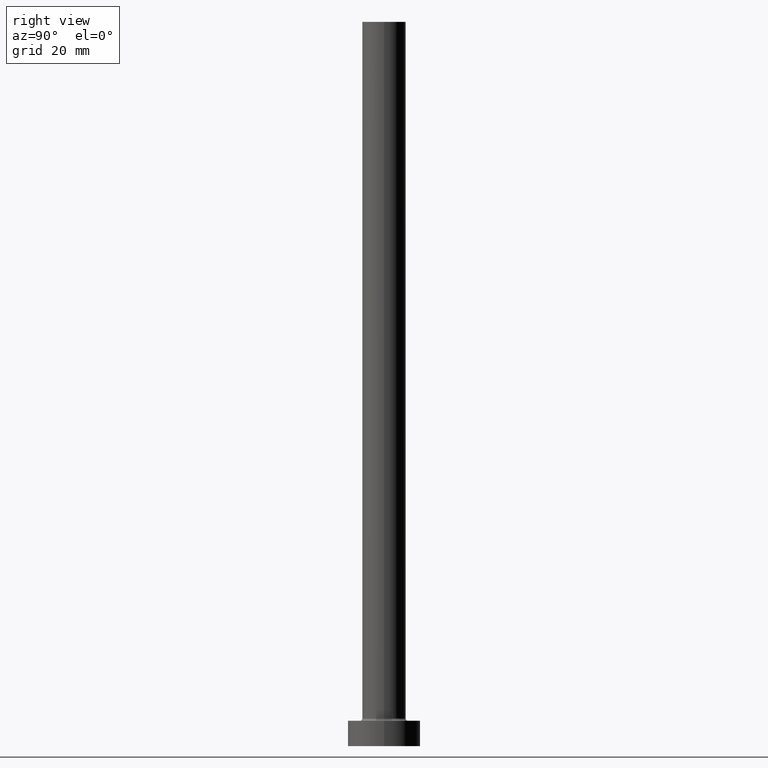
[diagram: clean part render]
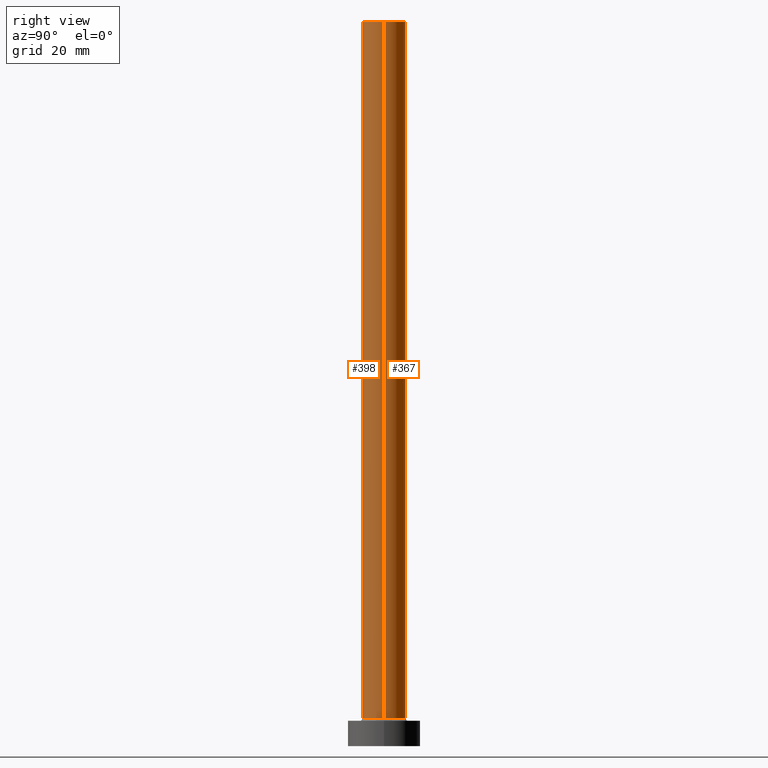
[diagram: same view with one multi-face feature highlighted, each face labeled with its STEP entity id]
A machine part, right view. The highlighted faces form ONE feature: a constant-radius fillet chain: 2 tangent blend faces with common blend radius 6 mm. The faces share edges in the B-rep.
Their STEP definitions:
[1] entity #398 (Cylinder):
#1 = DIRECTION ( 'NONE',  ( -0.000000000000000000, -0.000000000000000000, -1.000000000000000000 ) ) ;
#10 = EDGE_LOOP ( 'NONE', ( #16, #228, #18, #420 ) ) ;
#16 = ORIENTED_EDGE ( 'NONE', *, *, #302, .F. ) ;
#18 = ORIENTED_EDGE ( 'NONE', *, *, #45, .T. ) ;
#36 = DIRECTION ( 'NONE',  ( -1.000000000000000000, 0.000000000000000000, 0.000000000000000000 ) ) ;
#45 = EDGE_CURVE ( 'NONE', #375, #48, #86, .T. ) ;
#48 = VERTEX_POINT ( 'NONE', #191 ) ;
#56 = AXIS2_PLACEMENT_3D ( 'NONE', #425, #95, #204 ) ;
#86 = LINE ( 'NONE', #344, #371 ) ;
#95 = DIRECTION ( 'NONE',  ( 0.000000000000000000, 0.000000000000000000, 1.000000000000000000 ) ) ;
#109 = CARTESIAN_POINT ( 'NONE',  ( 6.000000000000000888, 7.347880794884120722E-16, 200.0000000000000000 ) ) ;
#115 = EDGE_CURVE ( 'NONE', #48, #320, #452, .T. ) ;
#130 = DIRECTION ( 'NONE',  ( -0.000000000000000000, -0.000000000000000000, -1.000000000000000000 ) ) ;
#141 = EDGE_CURVE ( 'NONE', #375, #341, #145, .T. ) ;
#143 = CARTESIAN_POINT ( 'NONE',  ( 6.000000000000000888, 7.347880794884120722E-16, 7.700000000000012612 ) ) ;
#145 = CIRCLE ( 'NONE', #56, 6.000000000000000888 ) ;
#146 = AXIS2_PLACEMENT_3D ( 'NONE', #421, #319, #428 ) ;
#178 = CARTESIAN_POINT ( 'NONE',  ( 6.000000000000000888, 7.347880794884120722E-16, 200.0000000000000000 ) ) ;
#181 = LINE ( 'NONE', #178, #345 ) ;
#183 = CYLINDRICAL_SURFACE ( 'NONE', #426, 6.000000000000000888 ) ;
#191 = CARTESIAN_POINT ( 'NONE',  ( -6.000000000000000888, 0.000000000000000000, 7.700000000000012612 ) ) ;
#204 = DIRECTION ( 'NONE',  ( 1.000000000000000000, 0.000000000000000000, 0.000000000000000000 ) ) ;
#222 = CARTESIAN_POINT ( 'NONE',  ( -6.000000000000000888, 0.000000000000000000, 200.0000000000000000 ) ) ;
#228 = ORIENTED_EDGE ( 'NONE', *, *, #141, .F. ) ;
#296 = CARTESIAN_POINT ( 'NONE',  ( 0.000000000000000000, 0.000000000000000000, 200.0000000000000000 ) ) ;
#302 = EDGE_CURVE ( 'NONE', #341, #320, #181, .T. ) ;
#319 = DIRECTION ( 'NONE',  ( 0.000000000000000000, 0.000000000000000000, 1.000000000000000000 ) ) ;
#320 = VERTEX_POINT ( 'NONE', #143 ) ;
#341 = VERTEX_POINT ( 'NONE', #109 ) ;
#344 = CARTESIAN_POINT ( 'NONE',  ( -6.000000000000000888, 0.000000000000000000, 200.0000000000000000 ) ) ;
#345 = VECTOR ( 'NONE', #1, 1000.000000000000000 ) ;
#356 = FACE_OUTER_BOUND ( 'NONE', #10, .T. ) ;
#371 = VECTOR ( 'NONE', #130, 1000.000000000000000 ) ;
#375 = VERTEX_POINT ( 'NONE', #222 ) ;
#392 = DIRECTION ( 'NONE',  ( -0.000000000000000000, -0.000000000000000000, -1.000000000000000000 ) ) ;
#398 = ADVANCED_FACE ( 'NONE', ( #356 ), #183, .T. ) ;
#420 = ORIENTED_EDGE ( 'NONE', *, *, #115, .T. ) ;
#421 = CARTESIAN_POINT ( 'NONE',  ( 0.000000000000000000, 0.000000000000000000, 7.700000000000012612 ) ) ;
#425 = CARTESIAN_POINT ( 'NONE',  ( 0.000000000000000000, 0.000000000000000000, 200.0000000000000000 ) ) ;
#426 = AXIS2_PLACEMENT_3D ( 'NONE', #296, #392, #36 ) ;
#428 = DIRECTION ( 'NONE',  ( 1.000000000000000000, 0.000000000000000000, 0.000000000000000000 ) ) ;
#452 = CIRCLE ( 'NONE', #146, 6.000000000000000888 ) ;
[2] entity #367 (Cylinder):
#1 = DIRECTION ( 'NONE',  ( -0.000000000000000000, -0.000000000000000000, -1.000000000000000000 ) ) ;
#24 = CARTESIAN_POINT ( 'NONE',  ( 0.000000000000000000, 0.000000000000000000, 200.0000000000000000 ) ) ;
#27 = CARTESIAN_POINT ( 'NONE',  ( 0.000000000000000000, 0.000000000000000000, 7.700000000000012612 ) ) ;
#40 = ORIENTED_EDGE ( 'NONE', *, *, #45, .F. ) ;
#45 = EDGE_CURVE ( 'NONE', #375, #48, #86, .T. ) ;
#48 = VERTEX_POINT ( 'NONE', #191 ) ;
#50 = AXIS2_PLACEMENT_3D ( 'NONE', #27, #278, #279 ) ;
#86 = LINE ( 'NONE', #344, #371 ) ;
#93 = EDGE_CURVE ( 'NONE', #341, #375, #353, .T. ) ;
#101 = AXIS2_PLACEMENT_3D ( 'NONE', #217, #250, #142 ) ;
#104 = ORIENTED_EDGE ( 'NONE', *, *, #271, .T. ) ;
#109 = CARTESIAN_POINT ( 'NONE',  ( 6.000000000000000888, 7.347880794884120722E-16, 200.0000000000000000 ) ) ;
#130 = DIRECTION ( 'NONE',  ( -0.000000000000000000, -0.000000000000000000, -1.000000000000000000 ) ) ;
#142 = DIRECTION ( 'NONE',  ( -1.000000000000000000, 0.000000000000000000, 0.000000000000000000 ) ) ;
#143 = CARTESIAN_POINT ( 'NONE',  ( 6.000000000000000888, 7.347880794884120722E-16, 7.700000000000012612 ) ) ;
#156 = ORIENTED_EDGE ( 'NONE', *, *, #93, .F. ) ;
#158 = AXIS2_PLACEMENT_3D ( 'NONE', #24, #167, #273 ) ;
#165 = CIRCLE ( 'NONE', #50, 6.000000000000000888 ) ;
#167 = DIRECTION ( 'NONE',  ( 0.000000000000000000, 0.000000000000000000, 1.000000000000000000 ) ) ;
#178 = CARTESIAN_POINT ( 'NONE',  ( 6.000000000000000888, 7.347880794884120722E-16, 200.0000000000000000 ) ) ;
#181 = LINE ( 'NONE', #178, #345 ) ;
#191 = CARTESIAN_POINT ( 'NONE',  ( -6.000000000000000888, 0.000000000000000000, 7.700000000000012612 ) ) ;
#217 = CARTESIAN_POINT ( 'NONE',  ( 0.000000000000000000, 0.000000000000000000, 200.0000000000000000 ) ) ;
#222 = CARTESIAN_POINT ( 'NONE',  ( -6.000000000000000888, 0.000000000000000000, 200.0000000000000000 ) ) ;
#233 = EDGE_LOOP ( 'NONE', ( #156, #412, #104, #40 ) ) ;
#250 = DIRECTION ( 'NONE',  ( -0.000000000000000000, -0.000000000000000000, -1.000000000000000000 ) ) ;
#271 = EDGE_CURVE ( 'NONE', #320, #48, #165, .T. ) ;
#273 = DIRECTION ( 'NONE',  ( 1.000000000000000000, 0.000000000000000000, 0.000000000000000000 ) ) ;
#278 = DIRECTION ( 'NONE',  ( 0.000000000000000000, 0.000000000000000000, 1.000000000000000000 ) ) ;
#279 = DIRECTION ( 'NONE',  ( 1.000000000000000000, 0.000000000000000000, 0.000000000000000000 ) ) ;
#302 = EDGE_CURVE ( 'NONE', #341, #320, #181, .T. ) ;
#320 = VERTEX_POINT ( 'NONE', #143 ) ;
#327 = FACE_OUTER_BOUND ( 'NONE', #233, .T. ) ;
#341 = VERTEX_POINT ( 'NONE', #109 ) ;
#344 = CARTESIAN_POINT ( 'NONE',  ( -6.000000000000000888, 0.000000000000000000, 200.0000000000000000 ) ) ;
#345 = VECTOR ( 'NONE', #1, 1000.000000000000000 ) ;
#353 = CIRCLE ( 'NONE', #158, 6.000000000000000888 ) ;
#367 = ADVANCED_FACE ( 'NONE', ( #327 ), #368, .T. ) ;
#368 = CYLINDRICAL_SURFACE ( 'NONE', #101, 6.000000000000000888 ) ;
#371 = VECTOR ( 'NONE', #130, 1000.000000000000000 ) ;
#375 = VERTEX_POINT ( 'NONE', #222 ) ;
#412 = ORIENTED_EDGE ( 'NONE', *, *, #302, .T. ) ;